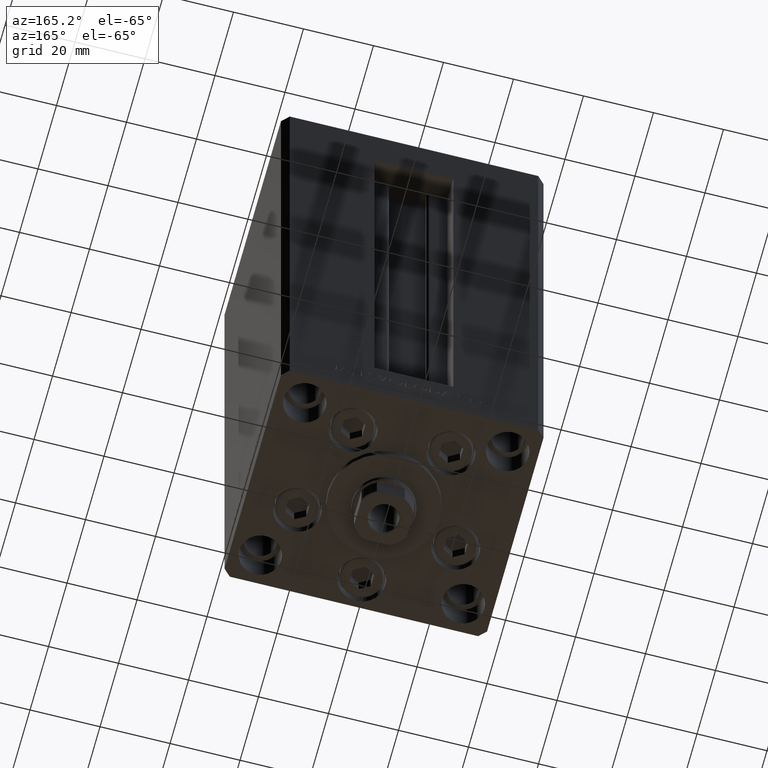
[diagram: clean part render]
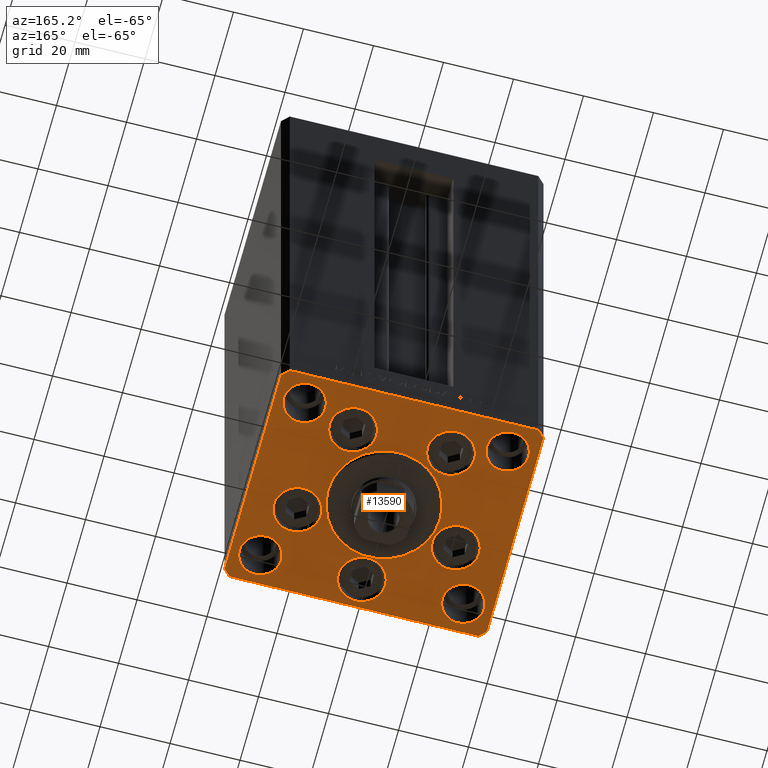
[diagram: same view with one face highlighted and labeled with its STEP entity id]
A machine part, auxiliary view. The second image highlights one B-rep face of the part: STEP entity #13590.
In plain terms, the highlighted planar face has unit normal (0, 0, -1).
Its self-contained STEP definition (entity closure, byte-faithful):
#780 = VERTEX_POINT ( 'NONE', #47407 ) ;
#840 = CARTESIAN_POINT ( 'NONE',  ( -23.00000000000000000, 24.00000000000000711, 0.000000000000000000 ) ) ;
#862 = CARTESIAN_POINT ( 'NONE',  ( -35.50000000000000711, 32.49999999999997868, 0.000000000000000000 ) ) ;
#1025 = DIRECTION ( 'NONE',  ( 1.000000000000000000, 0.000000000000000000, 0.000000000000000000 ) ) ;
#1148 = CARTESIAN_POINT ( 'NONE',  ( -15.87741699796953476, -8.000000000000000000, 0.000000000000000000 ) ) ;
#1240 = AXIS2_PLACEMENT_3D ( 'NONE', #2213, #14252, #14741 ) ;
#1325 = ORIENTED_EDGE ( 'NONE', *, *, #1466, .F. ) ;
#1454 = DIRECTION ( 'NONE',  ( 2.275047181608926165E-16, -1.000000000000000000, 0.000000000000000000 ) ) ;
#1466 = EDGE_CURVE ( 'NONE', #48801, #8977, #14214, .T. ) ;
#1696 = AXIS2_PLACEMENT_3D ( 'NONE', #8327, #46264, #7840 ) ;
#1723 = EDGE_CURVE ( 'NONE', #48504, #6186, #16519, .T. ) ;
#1760 = VERTEX_POINT ( 'NONE', #12009 ) ;
#1862 = LINE ( 'NONE', #9147, #33199 ) ;
#1992 = VERTEX_POINT ( 'NONE', #1148 ) ;
#2213 = CARTESIAN_POINT ( 'NONE',  ( -13.99106857963324124, 19.50000000000000000, 0.000000000000000000 ) ) ;
#2725 = LINE ( 'NONE', #21570, #41389 ) ;
#2727 = DIRECTION ( 'NONE',  ( 1.000000000000000000, 0.000000000000000000, 0.000000000000000000 ) ) ;
#2873 = DIRECTION ( 'NONE',  ( 1.000000000000000000, 0.000000000000000000, 0.000000000000000000 ) ) ;
#3098 = DIRECTION ( 'NONE',  ( 1.000000000000000000, 1.172770800660376149E-15, 0.000000000000000000 ) ) ;
#3365 = ORIENTED_EDGE ( 'NONE', *, *, #16129, .F. ) ;
#3453 = CIRCLE ( 'NONE', #31511, 6.750000000000000000 ) ;
#3559 = CARTESIAN_POINT ( 'NONE',  ( 29.37741699796954364, -8.000000000000000000, 0.000000000000000000 ) ) ;
#3560 = ORIENTED_EDGE ( 'NONE', *, *, #13127, .T. ) ;
#3605 = VERTEX_POINT ( 'NONE', #3559 ) ;
#3659 = AXIS2_PLACEMENT_3D ( 'NONE', #5083, #36204, #16646 ) ;
#3775 = EDGE_CURVE ( 'NONE', #3605, #18816, #22210, .T. ) ;
#4126 = PLANE ( 'NONE',  #37326 ) ;
#4256 = CARTESIAN_POINT ( 'NONE',  ( 37.50000000000000711, -30.49999999999992895, 0.000000000000000000 ) ) ;
#4428 = CIRCLE ( 'NONE', #42143, 6.749999999999999112 ) ;
#4960 = EDGE_CURVE ( 'NONE', #45313, #26233, #34270, .T. ) ;
#5083 = CARTESIAN_POINT ( 'NONE',  ( -29.00000000000000000, 24.00000000000000711, 0.000000000000000000 ) ) ;
#5501 = EDGE_LOOP ( 'NONE', ( #1325, #5879 ) ) ;
#5671 = CIRCLE ( 'NONE', #1696, 5.999999999999998224 ) ;
#5879 = ORIENTED_EDGE ( 'NONE', *, *, #48931, .F. ) ;
#6137 = EDGE_CURVE ( 'NONE', #49217, #21865, #23111, .T. ) ;
#6186 = VERTEX_POINT ( 'NONE', #12178 ) ;
#6779 = EDGE_CURVE ( 'NONE', #13051, #19633, #8807, .T. ) ;
#6931 = LINE ( 'NONE', #17995, #25102 ) ;
#7295 = AXIS2_PLACEMENT_3D ( 'NONE', #26070, #19766, #30811 ) ;
#7401 = FACE_BOUND ( 'NONE', #28427, .T. ) ;
#7754 = CARTESIAN_POINT ( 'NONE',  ( -29.37741699796953654, -8.000000000000000000, 0.000000000000000000 ) ) ;
#7840 = DIRECTION ( 'NONE',  ( 1.000000000000000000, 0.000000000000000000, 0.000000000000000000 ) ) ;
#7875 = EDGE_LOOP ( 'NONE', ( #28482, #15396 ) ) ;
#7893 = FACE_BOUND ( 'NONE', #12769, .T. ) ;
#8188 = EDGE_CURVE ( 'NONE', #1992, #11635, #4428, .T. ) ;
#8327 = CARTESIAN_POINT ( 'NONE',  ( 29.00000000000000355, -23.99999999999999645, 0.000000000000000000 ) ) ;
#8649 = CARTESIAN_POINT ( 'NONE',  ( 35.50000000000001421, -32.49999999999992184, 0.000000000000000000 ) ) ;
#8807 = CIRCLE ( 'NONE', #48922, 6.000000000000001776 ) ;
#8940 = VERTEX_POINT ( 'NONE', #19694 ) ;
#8972 = ORIENTED_EDGE ( 'NONE', *, *, #24078, .T. ) ;
#8977 = VERTEX_POINT ( 'NONE', #39260 ) ;
#9147 = CARTESIAN_POINT ( 'NONE',  ( 35.50000000000001421, -32.49999999999992184, 0.000000000000000000 ) ) ;
#9449 = CARTESIAN_POINT ( 'NONE',  ( -6.750000000001552536, -24.00000000000001066, 0.000000000000000000 ) ) ;
#9614 = AXIS2_PLACEMENT_3D ( 'NONE', #10625, #22182, #48321 ) ;
#9679 = DIRECTION ( 'NONE',  ( 1.000000000000000000, 0.000000000000000000, 0.000000000000000000 ) ) ;
#10509 = EDGE_CURVE ( 'NONE', #36865, #48504, #2725, .T. ) ;
#10625 = CARTESIAN_POINT ( 'NONE',  ( 29.00000000000000000, 24.00000000000000355, 0.000000000000000000 ) ) ;
#11635 = VERTEX_POINT ( 'NONE', #7754 ) ;
#12009 = CARTESIAN_POINT ( 'NONE',  ( 37.50000000000000711, 30.50000000000001421, 0.000000000000000000 ) ) ;
#12085 = EDGE_CURVE ( 'NONE', #40422, #16128, #41313, .T. ) ;
#12178 = CARTESIAN_POINT ( 'NONE',  ( -37.50000000000000000, -30.50000000000004263, 0.000000000000000000 ) ) ;
#12257 = CIRCLE ( 'NONE', #14663, 6.749999999999997335 ) ;
#12271 = CARTESIAN_POINT ( 'NONE',  ( 35.50000000000000000, 32.49999999999999289, 0.000000000000000000 ) ) ;
#12327 = CIRCLE ( 'NONE', #39566, 6.749999999999997335 ) ;
#12481 = VECTOR ( 'NONE', #25315, 1000.000000000000000 ) ;
#12615 = ORIENTED_EDGE ( 'NONE', *, *, #43005, .F. ) ;
#12769 = EDGE_LOOP ( 'NONE', ( #15824, #16164 ) ) ;
#13051 = VERTEX_POINT ( 'NONE', #48936 ) ;
#13106 = EDGE_CURVE ( 'NONE', #8940, #30456, #44553, .T. ) ;
#13127 = EDGE_CURVE ( 'NONE', #6186, #23504, #33084, .T. ) ;
#13362 = EDGE_CURVE ( 'NONE', #28295, #28491, #32516, .T. ) ;
#13590 = ADVANCED_FACE ( 'NONE', ( #30492, #34003, #30245, #26497, #26983, #23461, #19195, #41799, #7401, #7893, #45826 ), #4126, .T. ) ;
#14002 = CARTESIAN_POINT ( 'NONE',  ( -37.50000000000000000, -30.50000000000004263, 0.000000000000000000 ) ) ;
#14141 = AXIS2_PLACEMENT_3D ( 'NONE', #25204, #29963, #28973 ) ;
#14214 = CIRCLE ( 'NONE', #42274, 6.000000000000001776 ) ;
#14224 = ORIENTED_EDGE ( 'NONE', *, *, #38201, .F. ) ;
#14252 = DIRECTION ( 'NONE',  ( 0.000000000000000000, 0.000000000000000000, 1.000000000000000000 ) ) ;
#14399 = ORIENTED_EDGE ( 'NONE', *, *, #10509, .T. ) ;
#14663 = AXIS2_PLACEMENT_3D ( 'NONE', #40894, #21818, #2727 ) ;
#14736 = CARTESIAN_POINT ( 'NONE',  ( -22.62741699796953299, -8.000000000000000000, 0.000000000000000000 ) ) ;
#14741 = DIRECTION ( 'NONE',  ( 1.000000000000000000, 0.000000000000000000, 0.000000000000000000 ) ) ;
#15061 = LINE ( 'NONE', #4256, #20803 ) ;
#15396 = ORIENTED_EDGE ( 'NONE', *, *, #47831, .F. ) ;
#15824 = ORIENTED_EDGE ( 'NONE', *, *, #30981, .F. ) ;
#16079 = CARTESIAN_POINT ( 'NONE',  ( 22.62741699796953299, -8.000000000000000000, 0.000000000000000000 ) ) ;
#16092 = CARTESIAN_POINT ( 'NONE',  ( 7.241068579633242130, 19.50000000000000000, 0.000000000000000000 ) ) ;
#16128 = VERTEX_POINT ( 'NONE', #32978 ) ;
#16129 = EDGE_CURVE ( 'NONE', #19633, #13051, #35765, .T. ) ;
#16164 = ORIENTED_EDGE ( 'NONE', *, *, #12085, .F. ) ;
#16182 = EDGE_CURVE ( 'NONE', #23504, #31870, #37489, .T. ) ;
#16299 = CARTESIAN_POINT ( 'NONE',  ( 37.50000000000000711, -30.49999999999992895, 0.000000000000000000 ) ) ;
#16435 = DIRECTION ( 'NONE',  ( 0.000000000000000000, 0.000000000000000000, 1.000000000000000000 ) ) ;
#16448 = CIRCLE ( 'NONE', #40498, 6.750000000000009770 ) ;
#16519 = LINE ( 'NONE', #47416, #30298 ) ;
#16646 = DIRECTION ( 'NONE',  ( 1.000000000000000000, 0.000000000000000000, 0.000000000000000000 ) ) ;
#16690 = DIRECTION ( 'NONE',  ( 1.000000000000000000, 0.000000000000000000, 0.000000000000000000 ) ) ;
#17117 = ORIENTED_EDGE ( 'NONE', *, *, #25496, .F. ) ;
#17350 = DIRECTION ( 'NONE',  ( 1.000000000000000000, 0.000000000000000000, 0.000000000000000000 ) ) ;
#17590 = DIRECTION ( 'NONE',  ( 0.000000000000000000, 0.000000000000000000, 1.000000000000000000 ) ) ;
#17664 = ORIENTED_EDGE ( 'NONE', *, *, #16182, .T. ) ;
#17995 = CARTESIAN_POINT ( 'NONE',  ( 35.50000000000000000, 32.49999999999999289, 0.000000000000000000 ) ) ;
#18337 = LINE ( 'NONE', #37400, #44072 ) ;
#18513 = AXIS2_PLACEMENT_3D ( 'NONE', #25891, #25390, #17350 ) ;
#18545 = DIRECTION ( 'NONE',  ( -0.7071067811865524577, -0.7071067811865426878, 0.000000000000000000 ) ) ;
#18805 = CARTESIAN_POINT ( 'NONE',  ( 35.00000000000000000, 24.00000000000000355, 0.000000000000000000 ) ) ;
#18816 = VERTEX_POINT ( 'NONE', #48006 ) ;
#18826 = CARTESIAN_POINT ( 'NONE',  ( 0.000000000000000000, -6.938893903907228378E-15, 0.000000000000000000 ) ) ;
#18873 = CARTESIAN_POINT ( 'NONE',  ( 29.00000000000000355, -23.99999999999999645, 0.000000000000000000 ) ) ;
#18910 = AXIS2_PLACEMENT_3D ( 'NONE', #44589, #33516, #9679 ) ;
#19077 = DIRECTION ( 'NONE',  ( 0.000000000000000000, 0.000000000000000000, 1.000000000000000000 ) ) ;
#19195 = FACE_BOUND ( 'NONE', #20190, .T. ) ;
#19582 = DIRECTION ( 'NONE',  ( 0.000000000000000000, 0.000000000000000000, 1.000000000000000000 ) ) ;
#19633 = VERTEX_POINT ( 'NONE', #48434 ) ;
#19694 = CARTESIAN_POINT ( 'NONE',  ( -20.74106857963324302, 19.50000000000000000, 0.000000000000000000 ) ) ;
#19766 = DIRECTION ( 'NONE',  ( 0.000000000000000000, 0.000000000000000000, 1.000000000000000000 ) ) ;
#20190 = EDGE_LOOP ( 'NONE', ( #37775, #32998 ) ) ;
#20263 = ORIENTED_EDGE ( 'NONE', *, *, #31173, .F. ) ;
#20509 = CIRCLE ( 'NONE', #3659, 6.000000000000001776 ) ;
#20703 = CARTESIAN_POINT ( 'NONE',  ( -13.99106857963324124, 19.50000000000000000, 0.000000000000000000 ) ) ;
#20712 = ORIENTED_EDGE ( 'NONE', *, *, #43402, .F. ) ;
#20803 = VECTOR ( 'NONE', #42425, 1000.000000000000000 ) ;
#21570 = CARTESIAN_POINT ( 'NONE',  ( -35.50000000000000711, 32.49999999999997868, 0.000000000000000000 ) ) ;
#21634 = CARTESIAN_POINT ( 'NONE',  ( 16.00000000000000355, -4.979459025271462852E-15, 0.000000000000000000 ) ) ;
#21818 = DIRECTION ( 'NONE',  ( 0.000000000000000000, 0.000000000000000000, 1.000000000000000000 ) ) ;
#21865 = VERTEX_POINT ( 'NONE', #33890 ) ;
#22004 = DIRECTION ( 'NONE',  ( -1.000000000000000000, -1.954618001100627573E-16, 0.000000000000000000 ) ) ;
#22182 = DIRECTION ( 'NONE',  ( 0.000000000000000000, 0.000000000000000000, 1.000000000000000000 ) ) ;
#22210 = CIRCLE ( 'NONE', #36633, 6.750000000000009770 ) ;
#22402 = EDGE_LOOP ( 'NONE', ( #44590, #14224 ) ) ;
#22539 = EDGE_LOOP ( 'NONE', ( #31147, #17117 ) ) ;
#22766 = CARTESIAN_POINT ( 'NONE',  ( -37.50000000000001421, 30.50000000000000000, 0.000000000000000000 ) ) ;
#23111 = CIRCLE ( 'NONE', #27929, 6.000000000000001776 ) ;
#23400 = CARTESIAN_POINT ( 'NONE',  ( -7.241068579633241242, 19.50000000000000000, 0.000000000000000000 ) ) ;
#23461 = FACE_BOUND ( 'NONE', #22539, .T. ) ;
#23504 = VERTEX_POINT ( 'NONE', #32503 ) ;
#23596 = ORIENTED_EDGE ( 'NONE', *, *, #1723, .T. ) ;
#23619 = DIRECTION ( 'NONE',  ( 0.000000000000000000, 0.000000000000000000, 1.000000000000000000 ) ) ;
#23678 = AXIS2_PLACEMENT_3D ( 'NONE', #18873, #38448, #42713 ) ;
#23684 = ORIENTED_EDGE ( 'NONE', *, *, #13106, .F. ) ;
#23895 = VERTEX_POINT ( 'NONE', #16092 ) ;
#24078 = EDGE_CURVE ( 'NONE', #1760, #36251, #18337, .T. ) ;
#24111 = CIRCLE ( 'NONE', #37715, 6.749999999999999112 ) ;
#24759 = EDGE_LOOP ( 'NONE', ( #46290, #12615 ) ) ;
#25102 = VECTOR ( 'NONE', #22004, 1000.000000000000000 ) ;
#25204 = CARTESIAN_POINT ( 'NONE',  ( -29.00000000000000000, -23.99999999999999645, 0.000000000000000000 ) ) ;
#25315 = DIRECTION ( 'NONE',  ( 0.7071067811865512365, -0.7071067811865439090, 0.000000000000000000 ) ) ;
#25390 = DIRECTION ( 'NONE',  ( 0.000000000000000000, 0.000000000000000000, 1.000000000000000000 ) ) ;
#25480 = DIRECTION ( 'NONE',  ( 0.000000000000000000, 0.000000000000000000, 1.000000000000000000 ) ) ;
#25496 = EDGE_CURVE ( 'NONE', #11635, #1992, #24111, .T. ) ;
#25735 = CARTESIAN_POINT ( 'NONE',  ( -16.00000000000000355, -6.938893903907228378E-15, 0.000000000000000000 ) ) ;
#25891 = CARTESIAN_POINT ( 'NONE',  ( 0.000000000000000000, -24.00000000000001066, 0.000000000000000000 ) ) ;
#26070 = CARTESIAN_POINT ( 'NONE',  ( 0.000000000000000000, -6.938893903907228378E-15, 0.000000000000000000 ) ) ;
#26167 = DIRECTION ( 'NONE',  ( 1.000000000000000000, 0.000000000000000000, 0.000000000000000000 ) ) ;
#26233 = VERTEX_POINT ( 'NONE', #21634 ) ;
#26497 = FACE_BOUND ( 'NONE', #7875, .T. ) ;
#26717 = ORIENTED_EDGE ( 'NONE', *, *, #13362, .F. ) ;
#26738 = DIRECTION ( 'NONE',  ( -0.000000000000000000, 0.000000000000000000, 1.000000000000000000 ) ) ;
#26983 = FACE_BOUND ( 'NONE', #48335, .T. ) ;
#27024 = EDGE_CURVE ( 'NONE', #38031, #1760, #15061, .T. ) ;
#27929 = AXIS2_PLACEMENT_3D ( 'NONE', #32001, #30591, #38123 ) ;
#28207 = EDGE_LOOP ( 'NONE', ( #3560, #17664, #31453, #42393, #8972, #31335, #14399, #23596 ) ) ;
#28295 = VERTEX_POINT ( 'NONE', #38056 ) ;
#28427 = EDGE_LOOP ( 'NONE', ( #36194, #3365 ) ) ;
#28482 = ORIENTED_EDGE ( 'NONE', *, *, #3775, .F. ) ;
#28491 = VERTEX_POINT ( 'NONE', #9449 ) ;
#28890 = EDGE_CURVE ( 'NONE', #21865, #49217, #32081, .T. ) ;
#28973 = DIRECTION ( 'NONE',  ( 1.000000000000000000, 0.000000000000000000, 0.000000000000000000 ) ) ;
#29387 = DIRECTION ( 'NONE',  ( -0.7071067811865524577, 0.7071067811865426878, 0.000000000000000000 ) ) ;
#29453 = VECTOR ( 'NONE', #3098, 1000.000000000000000 ) ;
#29963 = DIRECTION ( 'NONE',  ( 0.000000000000000000, 0.000000000000000000, 1.000000000000000000 ) ) ;
#30055 = DIRECTION ( 'NONE',  ( 0.000000000000000000, 0.000000000000000000, 1.000000000000000000 ) ) ;
#30245 = FACE_BOUND ( 'NONE', #24759, .T. ) ;
#30298 = VECTOR ( 'NONE', #1454, 1000.000000000000000 ) ;
#30456 = VERTEX_POINT ( 'NONE', #23400 ) ;
#30492 = FACE_BOUND ( 'NONE', #22402, .T. ) ;
#30591 = DIRECTION ( 'NONE',  ( 0.000000000000000000, 0.000000000000000000, 1.000000000000000000 ) ) ;
#30811 = DIRECTION ( 'NONE',  ( 1.000000000000000000, 0.000000000000000000, 0.000000000000000000 ) ) ;
#30981 = EDGE_CURVE ( 'NONE', #16128, #40422, #5671, .T. ) ;
#31147 = ORIENTED_EDGE ( 'NONE', *, *, #8188, .F. ) ;
#31173 = EDGE_CURVE ( 'NONE', #28491, #28295, #40983, .T. ) ;
#31335 = ORIENTED_EDGE ( 'NONE', *, *, #43256, .T. ) ;
#31453 = ORIENTED_EDGE ( 'NONE', *, *, #46206, .T. ) ;
#31511 = AXIS2_PLACEMENT_3D ( 'NONE', #20703, #16435, #16690 ) ;
#31870 = VERTEX_POINT ( 'NONE', #8649 ) ;
#31991 = DIRECTION ( 'NONE',  ( 0.7071067811865463515, 0.7071067811865487940, 0.000000000000000000 ) ) ;
#32001 = CARTESIAN_POINT ( 'NONE',  ( 29.00000000000000000, 24.00000000000000355, 0.000000000000000000 ) ) ;
#32081 = CIRCLE ( 'NONE', #9614, 6.000000000000001776 ) ;
#32503 = CARTESIAN_POINT ( 'NONE',  ( -35.50000000000001421, -32.50000000000000711, 0.000000000000000000 ) ) ;
#32516 = CIRCLE ( 'NONE', #18910, 6.750000000001552536 ) ;
#32978 = CARTESIAN_POINT ( 'NONE',  ( 35.00000000000000000, -23.99999999999999645, 0.000000000000000000 ) ) ;
#32998 = ORIENTED_EDGE ( 'NONE', *, *, #28890, .F. ) ;
#33046 = EDGE_LOOP ( 'NONE', ( #20712, #23684 ) ) ;
#33084 = LINE ( 'NONE', #14002, #12481 ) ;
#33191 = CARTESIAN_POINT ( 'NONE',  ( -29.00000000000000000, -23.99999999999999645, 0.000000000000000000 ) ) ;
#33199 = VECTOR ( 'NONE', #31991, 1000.000000000000000 ) ;
#33516 = DIRECTION ( 'NONE',  ( 0.000000000000000000, 0.000000000000000000, 1.000000000000000000 ) ) ;
#33890 = CARTESIAN_POINT ( 'NONE',  ( 23.00000000000000000, 24.00000000000000355, 0.000000000000000000 ) ) ;
#34003 = FACE_BOUND ( 'NONE', #33046, .T. ) ;
#34129 = DIRECTION ( 'NONE',  ( 1.000000000000000000, 0.000000000000000000, 0.000000000000000000 ) ) ;
#34270 = CIRCLE ( 'NONE', #41517, 16.00000000000000355 ) ;
#34495 = DIRECTION ( 'NONE',  ( 1.000000000000000000, 0.000000000000000000, 0.000000000000000000 ) ) ;
#35143 = DIRECTION ( 'NONE',  ( 1.000000000000000000, 0.000000000000000000, 0.000000000000000000 ) ) ;
#35369 = CARTESIAN_POINT ( 'NONE',  ( -22.62741699796953299, -8.000000000000000000, 0.000000000000000000 ) ) ;
#35765 = CIRCLE ( 'NONE', #14141, 6.000000000000001776 ) ;
#36194 = ORIENTED_EDGE ( 'NONE', *, *, #6779, .F. ) ;
#36204 = DIRECTION ( 'NONE',  ( 0.000000000000000000, 0.000000000000000000, 1.000000000000000000 ) ) ;
#36251 = VERTEX_POINT ( 'NONE', #12271 ) ;
#36633 = AXIS2_PLACEMENT_3D ( 'NONE', #43206, #17590, #41426 ) ;
#36865 = VERTEX_POINT ( 'NONE', #862 ) ;
#37326 = AXIS2_PLACEMENT_3D ( 'NONE', #38769, #26738, #34495 ) ;
#37400 = CARTESIAN_POINT ( 'NONE',  ( 37.50000000000000711, 30.50000000000001421, 0.000000000000000000 ) ) ;
#37489 = LINE ( 'NONE', #48576, #29453 ) ;
#37715 = AXIS2_PLACEMENT_3D ( 'NONE', #35369, #19582, #46709 ) ;
#37775 = ORIENTED_EDGE ( 'NONE', *, *, #6137, .F. ) ;
#38031 = VERTEX_POINT ( 'NONE', #16299 ) ;
#38056 = CARTESIAN_POINT ( 'NONE',  ( 6.750000000001552536, -24.00000000000001066, 0.000000000000000000 ) ) ;
#38123 = DIRECTION ( 'NONE',  ( 1.000000000000000000, 0.000000000000000000, 0.000000000000000000 ) ) ;
#38201 = EDGE_CURVE ( 'NONE', #26233, #45313, #42593, .T. ) ;
#38448 = DIRECTION ( 'NONE',  ( 0.000000000000000000, 0.000000000000000000, 1.000000000000000000 ) ) ;
#38769 = CARTESIAN_POINT ( 'NONE',  ( 0.000000000000000000, 0.000000000000000000, 0.000000000000000000 ) ) ;
#39260 = CARTESIAN_POINT ( 'NONE',  ( -35.00000000000000000, 24.00000000000000711, 0.000000000000000000 ) ) ;
#39566 = AXIS2_PLACEMENT_3D ( 'NONE', #44571, #25480, #2873 ) ;
#39666 = CARTESIAN_POINT ( 'NONE',  ( -29.00000000000000000, 24.00000000000000711, 0.000000000000000000 ) ) ;
#40422 = VERTEX_POINT ( 'NONE', #40429 ) ;
#40429 = CARTESIAN_POINT ( 'NONE',  ( 23.00000000000000711, -23.99999999999999645, 0.000000000000000000 ) ) ;
#40498 = AXIS2_PLACEMENT_3D ( 'NONE', #16079, #43195, #35143 ) ;
#40894 = CARTESIAN_POINT ( 'NONE',  ( 13.99106857963324124, 19.50000000000000000, 0.000000000000000000 ) ) ;
#40983 = CIRCLE ( 'NONE', #18513, 6.750000000001552536 ) ;
#41313 = CIRCLE ( 'NONE', #23678, 5.999999999999998224 ) ;
#41389 = VECTOR ( 'NONE', #18545, 1000.000000000000000 ) ;
#41426 = DIRECTION ( 'NONE',  ( 1.000000000000000000, 0.000000000000000000, 0.000000000000000000 ) ) ;
#41517 = AXIS2_PLACEMENT_3D ( 'NONE', #18826, #19077, #34129 ) ;
#41799 = FACE_BOUND ( 'NONE', #5501, .T. ) ;
#42143 = AXIS2_PLACEMENT_3D ( 'NONE', #14736, #30055, #44646 ) ;
#42274 = AXIS2_PLACEMENT_3D ( 'NONE', #39666, #23619, #1025 ) ;
#42393 = ORIENTED_EDGE ( 'NONE', *, *, #27024, .T. ) ;
#42425 = DIRECTION ( 'NONE',  ( 0.000000000000000000, 1.000000000000000000, 0.000000000000000000 ) ) ;
#42593 = CIRCLE ( 'NONE', #7295, 16.00000000000000355 ) ;
#42713 = DIRECTION ( 'NONE',  ( 1.000000000000000000, 0.000000000000000000, 0.000000000000000000 ) ) ;
#43005 = EDGE_CURVE ( 'NONE', #23895, #780, #12257, .T. ) ;
#43195 = DIRECTION ( 'NONE',  ( 0.000000000000000000, 0.000000000000000000, 1.000000000000000000 ) ) ;
#43206 = CARTESIAN_POINT ( 'NONE',  ( 22.62741699796953299, -8.000000000000000000, 0.000000000000000000 ) ) ;
#43256 = EDGE_CURVE ( 'NONE', #36251, #36865, #6931, .T. ) ;
#43402 = EDGE_CURVE ( 'NONE', #30456, #8940, #3453, .T. ) ;
#44072 = VECTOR ( 'NONE', #29387, 1000.000000000000000 ) ;
#44553 = CIRCLE ( 'NONE', #1240, 6.750000000000000000 ) ;
#44571 = CARTESIAN_POINT ( 'NONE',  ( 13.99106857963324124, 19.50000000000000000, 0.000000000000000000 ) ) ;
#44590 = ORIENTED_EDGE ( 'NONE', *, *, #4960, .F. ) ;
#44589 = CARTESIAN_POINT ( 'NONE',  ( 0.000000000000000000, -24.00000000000001066, 0.000000000000000000 ) ) ;
#44646 = DIRECTION ( 'NONE',  ( 1.000000000000000000, 0.000000000000000000, 0.000000000000000000 ) ) ;
#44757 = DIRECTION ( 'NONE',  ( 0.000000000000000000, 0.000000000000000000, 1.000000000000000000 ) ) ;
#45313 = VERTEX_POINT ( 'NONE', #25735 ) ;
#45405 = EDGE_CURVE ( 'NONE', #780, #23895, #12327, .T. ) ;
#45826 = FACE_OUTER_BOUND ( 'NONE', #28207, .T. ) ;
#46206 = EDGE_CURVE ( 'NONE', #31870, #38031, #1862, .T. ) ;
#46264 = DIRECTION ( 'NONE',  ( 0.000000000000000000, 0.000000000000000000, 1.000000000000000000 ) ) ;
#46290 = ORIENTED_EDGE ( 'NONE', *, *, #45405, .F. ) ;
#46709 = DIRECTION ( 'NONE',  ( 1.000000000000000000, 0.000000000000000000, 0.000000000000000000 ) ) ;
#47407 = CARTESIAN_POINT ( 'NONE',  ( 20.74106857963323947, 19.50000000000000000, 0.000000000000000000 ) ) ;
#47416 = CARTESIAN_POINT ( 'NONE',  ( -37.50000000000001421, 30.50000000000000000, 0.000000000000000000 ) ) ;
#47831 = EDGE_CURVE ( 'NONE', #18816, #3605, #16448, .T. ) ;
#48006 = CARTESIAN_POINT ( 'NONE',  ( 15.87741699796952410, -8.000000000000000000, 0.000000000000000000 ) ) ;
#48321 = DIRECTION ( 'NONE',  ( 1.000000000000000000, 0.000000000000000000, 0.000000000000000000 ) ) ;
#48335 = EDGE_LOOP ( 'NONE', ( #26717, #20263 ) ) ;
#48434 = CARTESIAN_POINT ( 'NONE',  ( -35.00000000000000000, -23.99999999999999645, 0.000000000000000000 ) ) ;
#48504 = VERTEX_POINT ( 'NONE', #22766 ) ;
#48576 = CARTESIAN_POINT ( 'NONE',  ( -35.50000000000001421, -32.50000000000000711, 0.000000000000000000 ) ) ;
#48801 = VERTEX_POINT ( 'NONE', #840 ) ;
#48922 = AXIS2_PLACEMENT_3D ( 'NONE', #33191, #44757, #26167 ) ;
#48931 = EDGE_CURVE ( 'NONE', #8977, #48801, #20509, .T. ) ;
#48936 = CARTESIAN_POINT ( 'NONE',  ( -23.00000000000000000, -23.99999999999999645, 0.000000000000000000 ) ) ;
#49217 = VERTEX_POINT ( 'NONE', #18805 ) ;